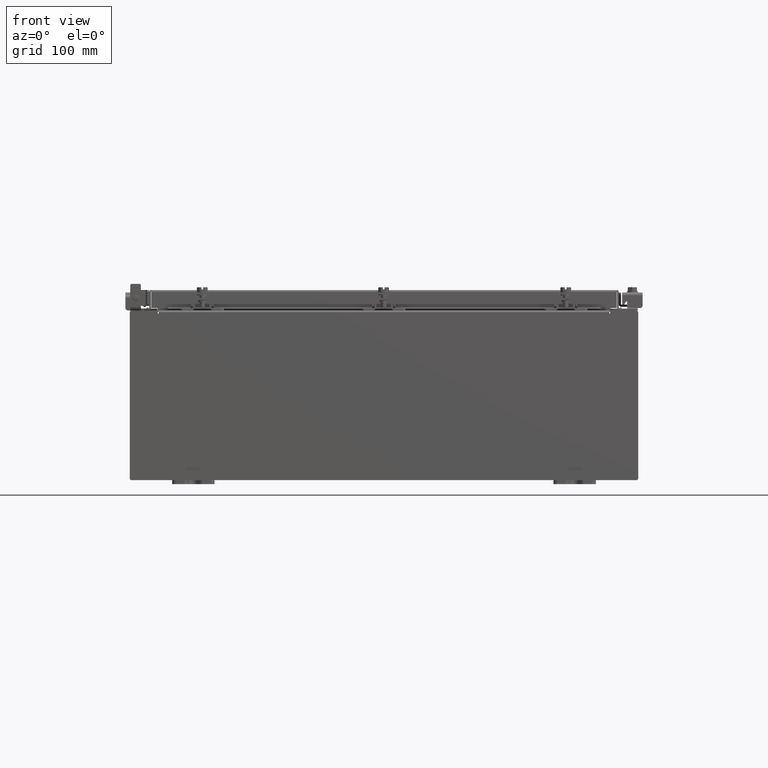
[diagram: clean part render]
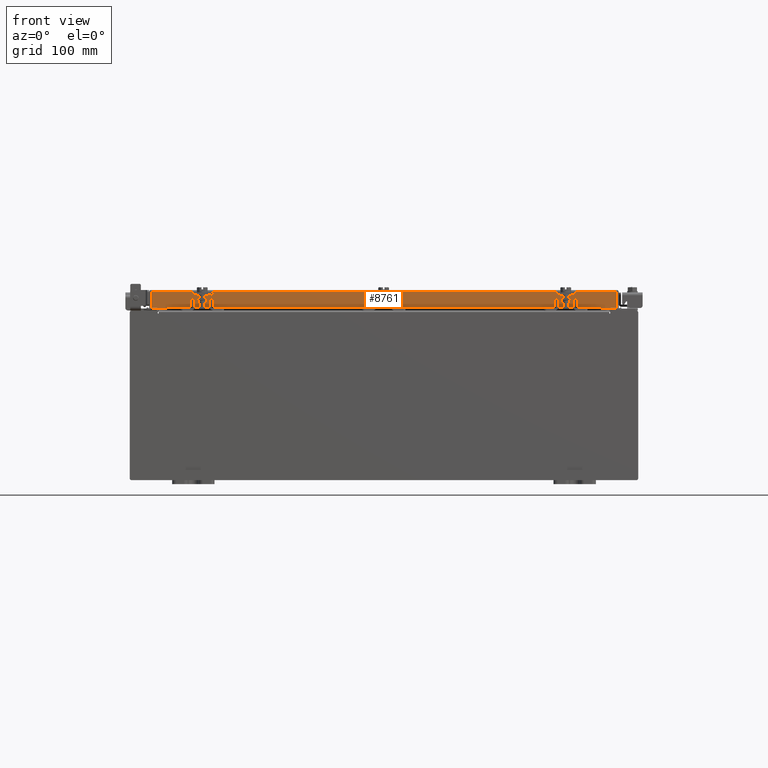
[diagram: same view with one face highlighted and labeled with its STEP entity id]
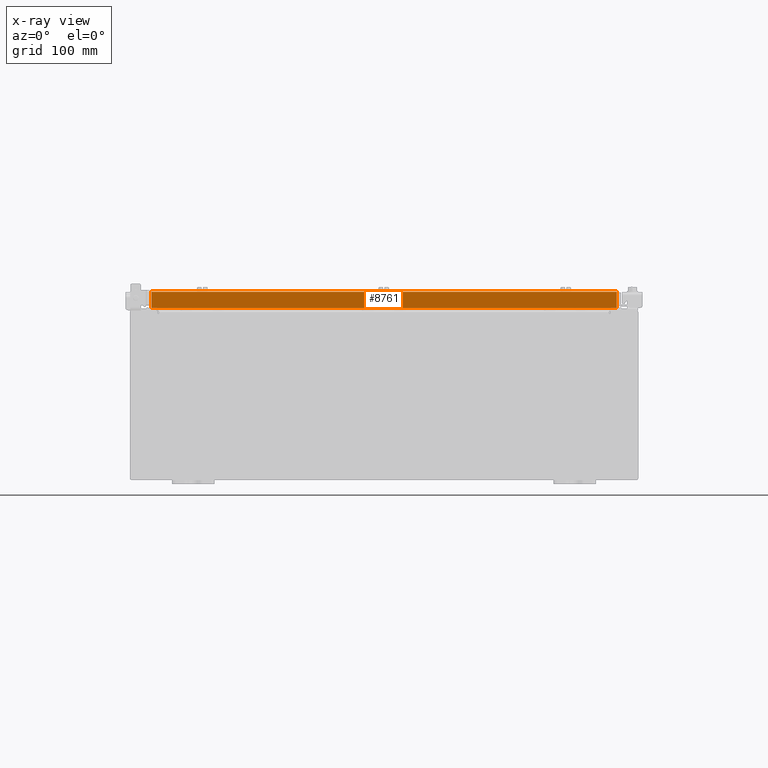
[diagram: x-ray of the same camera — body ghosted, the highlighted face saturated]
A machine part, front view. The second image highlights one B-rep face of the part: STEP entity #8761.
The next image is the same camera in x-ray: the body ghosted, the highlighted face saturated — about 0% of this face is hidden behind the body in this view.
In plain terms, the highlighted planar face has unit normal (-0, 1, -0).
Its self-contained STEP definition (entity closure, byte-faithful):
#413 = LINE ( 'NONE', #20603, #18393 ) ;
#649 = DIRECTION ( 'NONE',  ( -1.000000000000000000, 4.379057701015054300E-047, 1.233005954894504400E-016 ) ) ;
#662 = ORIENTED_EDGE ( 'NONE', *, *, #15065, .F. ) ;
#2075 = EDGE_CURVE ( 'NONE', #4252, #20102, #12845, .T. ) ;
#3674 = ORIENTED_EDGE ( 'NONE', *, *, #2075, .F. ) ;
#4053 = EDGE_CURVE ( 'NONE', #18548, #10699, #8603, .T. ) ;
#4085 = LINE ( 'NONE', #16281, #13344 ) ;
#4252 = VERTEX_POINT ( 'NONE', #6008 ) ;
#4420 = DIRECTION ( 'NONE',  ( 1.000000000000000000, 3.475696988576954000E-031, -9.473942235605631800E-046 ) ) ;
#5994 = DIRECTION ( 'NONE',  ( -3.475696988576954000E-031, 1.000000000000000000, -2.818880942772360100E-015 ) ) ;
#6008 = CARTESIAN_POINT ( 'NONE',  ( 10.98915786437627200, -9.094000000000001200, -0.8499999999999996400 ) ) ;
#6712 = FACE_OUTER_BOUND ( 'NONE', #18361, .T. ) ;
#7859 = VECTOR ( 'NONE', #17915, 39.37007874015748100 ) ;
#8036 = CARTESIAN_POINT ( 'NONE',  ( -10.98915786437626700, -9.094000000000001200, -0.8499999999999969800 ) ) ;
#8603 = LINE ( 'NONE', #15438, #22435 ) ;
#8761 = ADVANCED_FACE ( 'NONE', ( #6712 ), #11179, .F. ) ;
#8923 = CARTESIAN_POINT ( 'NONE',  ( -10.98915786437626700, -9.093999999999999400, 2.589571694958342300E-014 ) ) ;
#9016 = ORIENTED_EDGE ( 'NONE', *, *, #4053, .F. ) ;
#10699 = VERTEX_POINT ( 'NONE', #17694 ) ;
#11179 = PLANE ( 'NONE',  #20840 ) ;
#11803 = CARTESIAN_POINT ( 'NONE',  ( 10.23915786437627100, -9.093999999999994100, -0.8500000000000006400 ) ) ;
#11950 = EDGE_CURVE ( 'NONE', #15437, #19358, #4085, .T. ) ;
#12845 = LINE ( 'NONE', #17524, #21490 ) ;
#13319 = EDGE_CURVE ( 'NONE', #18548, #19358, #21685, .T. ) ;
#13344 = VECTOR ( 'NONE', #649, 39.37007874015748100 ) ;
#13467 = CARTESIAN_POINT ( 'NONE',  ( 10.23915786437627100, -9.093999999999994100, -0.8500000000000006400 ) ) ;
#14443 = ORIENTED_EDGE ( 'NONE', *, *, #21006, .F. ) ;
#14644 = CARTESIAN_POINT ( 'NONE',  ( 3.160798841411881500E-030, -9.093999999999999400, 2.589571694958342300E-014 ) ) ;
#15065 = EDGE_CURVE ( 'NONE', #20102, #15437, #22183, .T. ) ;
#15366 = ORIENTED_EDGE ( 'NONE', *, *, #11950, .F. ) ;
#15437 = VERTEX_POINT ( 'NONE', #17822 ) ;
#15438 = CARTESIAN_POINT ( 'NONE',  ( 11.07799999999999900, -9.093999999999999400, -0.08770000000000007000 ) ) ;
#16280 = DIRECTION ( 'NONE',  ( -1.000000000000000000, 4.379057701015054300E-047, 1.233005954894504400E-016 ) ) ;
#16281 = CARTESIAN_POINT ( 'NONE',  ( 11.07799999999999900, -9.094000000000001200, -0.8499999999999996400 ) ) ;
#17524 = CARTESIAN_POINT ( 'NONE',  ( 11.07799999999999900, -9.094000000000001200, -0.8499999999999996400 ) ) ;
#17694 = CARTESIAN_POINT ( 'NONE',  ( 10.98915786437626900, -9.093999999999999400, -0.08770000000000007000 ) ) ;
#17822 = CARTESIAN_POINT ( 'NONE',  ( -10.23915786437626700, -9.093999999999994100, -0.8500000000000006400 ) ) ;
#17915 = DIRECTION ( 'NONE',  ( 0.0000000000000000000, -2.818880942772360100E-015, -1.000000000000000000 ) ) ;
#17968 = CARTESIAN_POINT ( 'NONE',  ( -10.98915786437626700, -9.093999999999999400, -0.08770000000000007000 ) ) ;
#18129 = DIRECTION ( 'NONE',  ( 0.0000000000000000000, 2.818880942772360100E-015, 1.000000000000000000 ) ) ;
#18361 = EDGE_LOOP ( 'NONE', ( #9016, #20657, #15366, #662, #3674, #14443 ) ) ;
#18393 = VECTOR ( 'NONE', #18863, 39.37007874015748100 ) ;
#18548 = VERTEX_POINT ( 'NONE', #17968 ) ;
#18654 = VECTOR ( 'NONE', #20397, 39.37007874015748100 ) ;
#18863 = DIRECTION ( 'NONE',  ( -0.0000000000000000000, -2.818880942772360100E-015, -1.000000000000000000 ) ) ;
#19358 = VERTEX_POINT ( 'NONE', #8036 ) ;
#20102 = VERTEX_POINT ( 'NONE', #13467 ) ;
#20397 = DIRECTION ( 'NONE',  ( -1.000000000000000000, 0.0000000000000000000, 0.0000000000000000000 ) ) ;
#20603 = CARTESIAN_POINT ( 'NONE',  ( 10.98915786437627200, -9.093999999999999400, -0.07469999999999978000 ) ) ;
#20657 = ORIENTED_EDGE ( 'NONE', *, *, #13319, .T. ) ;
#20840 = AXIS2_PLACEMENT_3D ( 'NONE', #14644, #5994, #18129 ) ;
#21006 = EDGE_CURVE ( 'NONE', #10699, #4252, #413, .T. ) ;
#21490 = VECTOR ( 'NONE', #16280, 39.37007874015748100 ) ;
#21685 = LINE ( 'NONE', #8923, #7859 ) ;
#22183 = LINE ( 'NONE', #11803, #18654 ) ;
#22435 = VECTOR ( 'NONE', #4420, 39.37007874015748100 ) ;